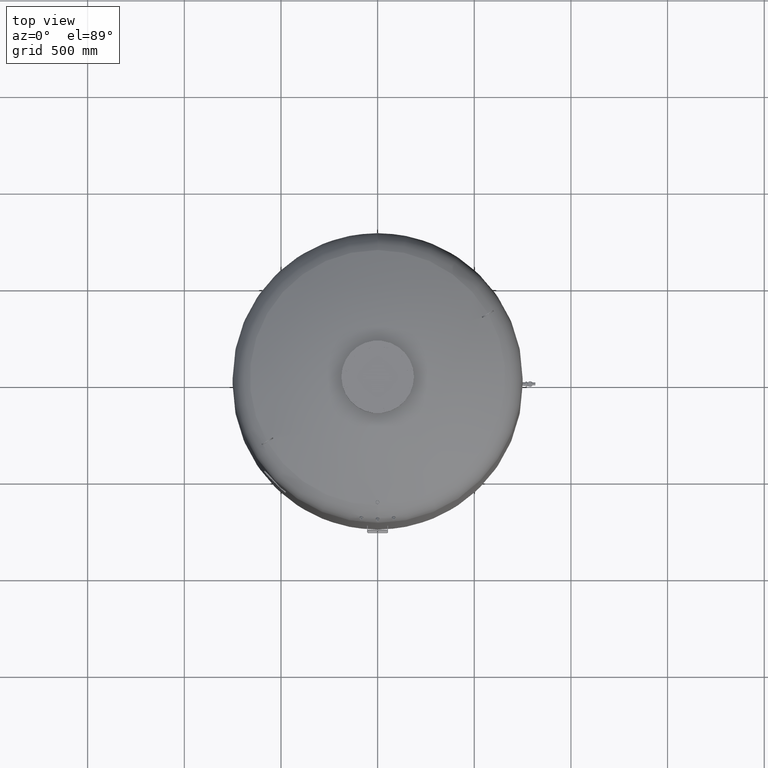
[diagram: clean part render]
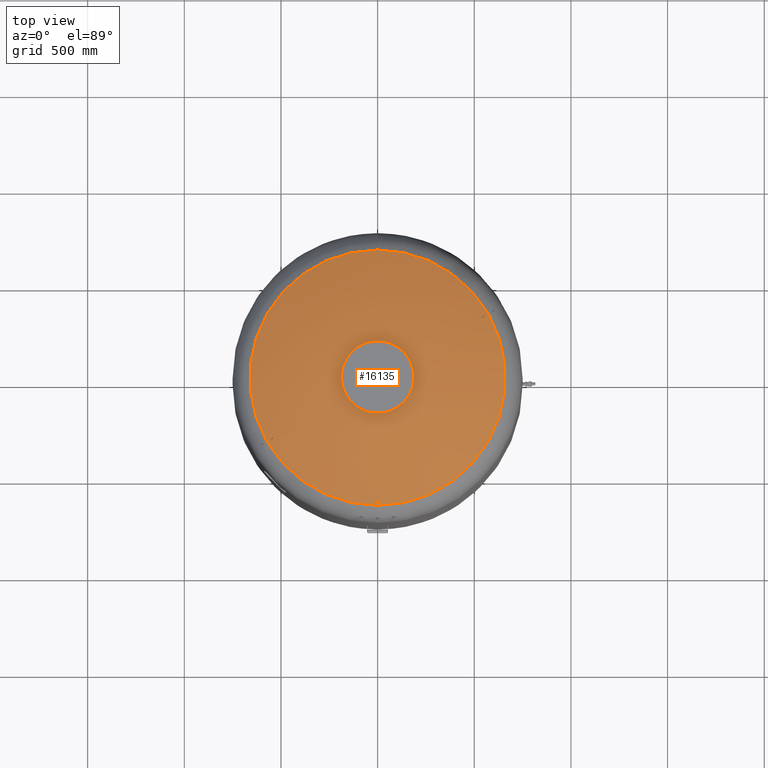
[diagram: same view with one face highlighted and labeled with its STEP entity id]
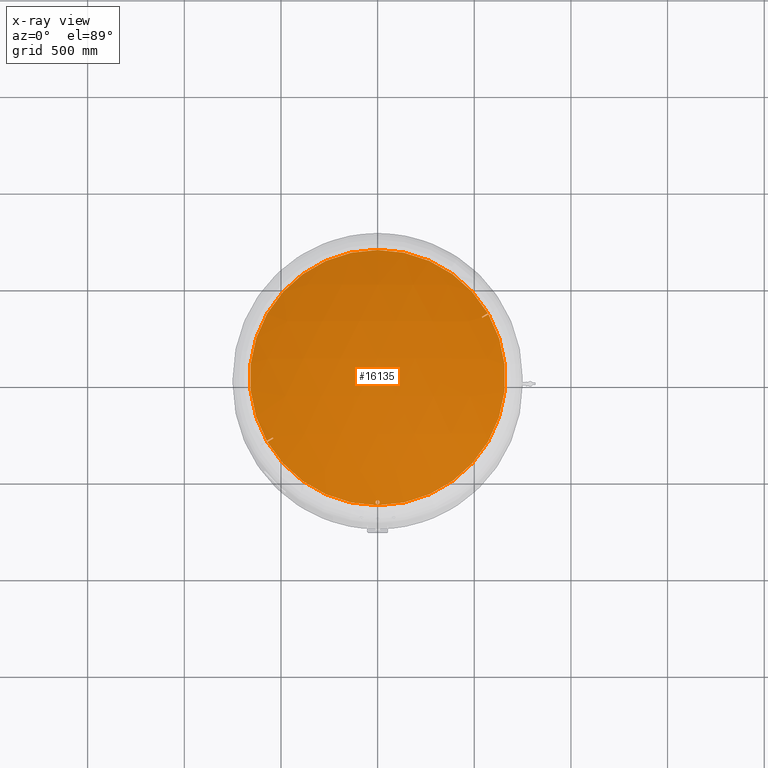
[diagram: x-ray of the same camera — body ghosted, the highlighted face saturated]
A machine part, top view. The second image highlights one B-rep face of the part: STEP entity #16135.
The next image is the same camera in x-ray: the body ghosted, the highlighted face saturated — about 0% of this face is hidden behind the body in this view.
In plain terms, the highlighted spherical surface has radius 1509 mm.
Its self-contained STEP definition (entity closure, byte-faithful):
#15353=CARTESIAN_POINT('',(-3.908790E-014,-655.650000000000200,2850.118860696149600));
#15354=VERTEX_POINT('',#15353);
#15370=CARTESIAN_POINT('',(-3.643333E-014,-634.350000000000250,2860.189934778955400));
#15371=VERTEX_POINT('',#15370);
#15378=CARTESIAN_POINT('',(-3.643333E-014,-634.350000000000250,2860.189934778955400));
#15379=CARTESIAN_POINT('',(-0.665356121600575,-634.350000000000250,2860.189934778955400));
#15380=CARTESIAN_POINT('',(-1.350949437001933,-634.413404190588380,2860.160067323583900));
#15381=CARTESIAN_POINT('',(-2.709163715388102,-634.677136677483300,2860.035819489551600));
#15382=CARTESIAN_POINT('',(-3.381800145527381,-634.877399673759780,2859.941469592940800));
#15383=CARTESIAN_POINT('',(-4.666205770247565,-635.401555709393960,2859.694482302683800));
#15384=CARTESIAN_POINT('',(-5.279175018932286,-635.725897994843310,2859.541632396409100));
#15385=CARTESIAN_POINT('',(-6.408446699131011,-636.467094997367890,2859.192258225785700));
#15386=CARTESIAN_POINT('',(-6.924750618118385,-636.883947430330180,2858.995733923613400));
#15387=CARTESIAN_POINT('',(-7.890225855511284,-637.812066143510150,2858.558066601965000));
#15388=CARTESIAN_POINT('',(-8.361484811050577,-638.364076526992330,2858.297699280517000));
#15389=CARTESIAN_POINT('',(-9.184909130526258,-639.560574217313960,2857.733154802825500));
#15390=CARTESIAN_POINT('',(-9.537165322407889,-640.205009979753980,2857.429000886638700));
#15391=CARTESIAN_POINT('',(-10.099596713855821,-641.543470358319950,2856.797056877939700));
#15392=CARTESIAN_POINT('',(-10.310158197774166,-642.238371078161440,2856.468852435417800));
#15393=CARTESIAN_POINT('',(-10.585389715432889,-643.630518005042970,2855.811092215924000));
#15394=CARTESIAN_POINT('',(-10.650000000000041,-644.327773783445990,2855.481531696811500));
#15395=CARTESIAN_POINT('',(-10.650000000000041,-645.672582847176270,2854.845682896962900));
#15396=CARTESIAN_POINT('',(-10.585321999158978,-646.370108996278650,2854.515766474685300));
#15397=CARTESIAN_POINT('',(-10.309904511360994,-647.762627273321750,2853.856887882093800));
#15398=CARTESIAN_POINT('',(-10.099226215268921,-648.457629366783070,2853.527921196685800));
#15399=CARTESIAN_POINT('',(-9.536575262430000,-649.796175836176870,2852.894126243168100));
#15400=CARTESIAN_POINT('',(-9.184218306884119,-650.440594312455000,2852.588884786357100));
#15401=CARTESIAN_POINT('',(-8.360621428439867,-651.637013011092450,2852.022009760502000));
#15402=CARTESIAN_POINT('',(-7.889290439644364,-652.188962456306400,2851.760401335867800));
#15403=CARTESIAN_POINT('',(-6.923874650766163,-653.116778685511690,2851.320541682071500));
#15404=CARTESIAN_POINT('',(-6.407722563082293,-653.533432843510810,2851.122965029964700));
#15405=CARTESIAN_POINT('',(-5.278739801402308,-654.274335051526010,2850.771567636845200));
#15406=CARTESIAN_POINT('',(-4.665906970622991,-654.598580857008300,2850.617749092760700));
#15407=CARTESIAN_POINT('',(-3.381714256279930,-655.122620744017920,2850.369122863290600));
#15408=CARTESIAN_POINT('',(-2.709152380359616,-655.322864024945490,2850.274102903182200));
#15409=CARTESIAN_POINT('',(-1.351005238531963,-655.586586472611200,2850.148956099280000));
#15410=CARTESIAN_POINT('',(-0.665404330812124,-655.650000000000200,2850.118860696149600));
#15411=CARTESIAN_POINT('',(-3.908790E-014,-655.650000000000200,2850.118860696149600));
#15412=B_SPLINE_CURVE_WITH_KNOTS('',3,(#15378,#15379,#15380,#15381,#15382,#15383,#15384,#15385,#15386,#15387,#15388,#15389,#15390,#15391,#15392,#15393,#15394,#15395,#15396,#15397,#15398,#15399,#15400,#15401,#15402,#15403,#15404,#15405,#15406,#15407,#15408,#15409,#15410,#15411),.UNSPECIFIED.,.F.,.U.,(4,2,2,2,2,2,2,2,2,2,2,2,2,2,2,2,4),(33.819766214062426,35.815834578864042,37.811902943665665,39.807971308467287,41.804039673268903,44.034778043807279,46.265516414345662,48.496254784884044,50.726993155422420,52.958914981161783,55.190836806901146,57.422758632640509,59.654680458379865,61.650893450816113,63.647106443252355,65.643319435688596,67.639532428124852),.UNSPECIFIED.);
#15413=EDGE_CURVE('',#15371,#15354,#15412,.T.);
#15634=CARTESIAN_POINT('',(1.087271E-013,660.606666666666800,2847.716562866229200));
#15635=VERTEX_POINT('',#15634);
#15643=CARTESIAN_POINT('',(570.596255916202270,332.898003566943030,2847.716562866229200));
#15644=VERTEX_POINT('',#15643);
#15645=CARTESIAN_POINT('',(7.530601E-015,-2.797401E-014,2847.716562866229200));
#15646=DIRECTION('',(0.0,0.0,-1.0));
#15647=DIRECTION('',(1.0,0.0,0.0));
#15648=AXIS2_PLACEMENT_3D('',#15645,#15646,#15647);
#15649=CIRCLE('',#15648,660.606666666666800);
#15650=EDGE_CURVE('',#15635,#15644,#15649,.T.);
#15679=CARTESIAN_POINT('',(573.596255916202270,327.701851144236400,2847.716562866229200));
#15680=VERTEX_POINT('',#15679);
#15694=CARTESIAN_POINT('',(2.782883E-014,-660.606666666666800,2847.716562866229200));
#15695=VERTEX_POINT('',#15694);
#15696=CARTESIAN_POINT('',(7.530601E-015,-2.797401E-014,2847.716562866229200));
#15697=DIRECTION('',(0.0,0.0,-1.0));
#15698=DIRECTION('',(1.0,0.0,0.0));
#15699=AXIS2_PLACEMENT_3D('',#15696,#15697,#15698);
#15700=CIRCLE('',#15699,660.606666666666800);
#15701=EDGE_CURVE('',#15680,#15695,#15700,.T.);
#15816=CARTESIAN_POINT('',(-570.596255916196580,-332.898003566952920,2847.716562866229700));
#15817=VERTEX_POINT('',#15816);
#15818=CARTESIAN_POINT('',(7.530601E-015,-2.797401E-014,2847.716562866229200));
#15819=DIRECTION('',(0.0,0.0,-1.0));
#15820=DIRECTION('',(1.0,0.0,0.0));
#15821=AXIS2_PLACEMENT_3D('',#15818,#15819,#15820);
#15822=CIRCLE('',#15821,660.606666666666800);
#15823=EDGE_CURVE('',#15695,#15817,#15822,.T.);
#15852=CARTESIAN_POINT('',(-573.596255916196580,-327.701851144246290,2847.716562866229700));
#15853=VERTEX_POINT('',#15852);
#15867=CARTESIAN_POINT('',(7.530601E-015,-2.797401E-014,2847.716562866229200));
#15868=DIRECTION('',(0.0,0.0,-1.0));
#15869=DIRECTION('',(1.0,0.0,0.0));
#15870=AXIS2_PLACEMENT_3D('',#15867,#15868,#15869);
#15871=CIRCLE('',#15870,660.606666666666800);
#15872=EDGE_CURVE('',#15853,#15635,#15871,.T.);
#16034=CARTESIAN_POINT('',(1.607048E-013,-2.771988E-013,1491.0));
#16035=DIRECTION('',(0.0,-1.0,0.0));
#16036=DIRECTION('',(-1.0,0.0,0.0));
#16037=AXIS2_PLACEMENT_3D('',#16034,#16035,#16036);
#16038=SPHERICAL_SURFACE('',#16037,1509.0);
#16039=CARTESIAN_POINT('',(-539.004547741172360,-314.658522347942950,2864.879584180558100));
#16040=VERTEX_POINT('',#16039);
#16041=CARTESIAN_POINT('',(1.500000000005994,-2.598076211363742,1491.0));
#16042=DIRECTION('',(0.499999999999994,-0.866025403784442,0.0));
#16043=DIRECTION('',(0.0,0.0,1.0));
#16044=AXIS2_PLACEMENT_3D('',#16041,#16042,#16043);
#16045=CIRCLE('',#16044,1508.997017889697400);
#16046=EDGE_CURVE('',#16040,#15817,#16045,.T.);
#16047=ORIENTED_EDGE('',*,*,#16046,.T.);
#16048=ORIENTED_EDGE('',*,*,#15823,.F.);
#16049=ORIENTED_EDGE('',*,*,#15701,.F.);
#16050=CARTESIAN_POINT('',(542.004547741178380,309.462369925225970,2864.879584180558100));
#16051=VERTEX_POINT('',#16050);
#16052=CARTESIAN_POINT('',(1.500000000006090,-2.598076211363818,1491.0));
#16053=DIRECTION('',(0.500000000000006,-0.866025403784435,0.0));
#16054=DIRECTION('',(0.0,0.0,1.0));
#16055=AXIS2_PLACEMENT_3D('',#16052,#16053,#16054);
#16056=CIRCLE('',#16055,1508.997017889697400);
#16057=EDGE_CURVE('',#15680,#16051,#16056,.T.);
#16058=ORIENTED_EDGE('',*,*,#16057,.T.);
#16059=CARTESIAN_POINT('',(539.004547741178380,314.658522347932720,2864.879584180558100));
#16060=VERTEX_POINT('',#16059);
#16061=CARTESIAN_POINT('',(195.850324208315390,113.074237402547780,1428.348481320245400));
#16062=DIRECTION('',(-0.834590199910595,-0.481850876581413,0.266981143436977));
#16063=DIRECTION('',(0.0,0.484652475916126,0.874706795211040));
#16064=AXIS2_PLACEMENT_3D('',#16061,#16062,#16063);
#16065=CIRCLE('',#16064,1490.641692208577100);
#16066=EDGE_CURVE('',#16051,#16060,#16065,.T.);
#16067=ORIENTED_EDGE('',*,*,#16066,.T.);
#16068=CARTESIAN_POINT('',(-1.499999999993948,2.598076211342792,1491.0));
#16069=DIRECTION('',(-0.500000000000006,0.866025403784435,0.0));
#16070=DIRECTION('',(0.0,0.0,-1.0));
#16071=AXIS2_PLACEMENT_3D('',#16068,#16069,#16070);
#16072=CIRCLE('',#16071,1508.997017889697400);
#16073=EDGE_CURVE('',#16060,#15644,#16072,.T.);
#16074=ORIENTED_EDGE('',*,*,#16073,.T.);
#16075=ORIENTED_EDGE('',*,*,#15650,.F.);
#16076=ORIENTED_EDGE('',*,*,#15872,.F.);
#16077=CARTESIAN_POINT('',(-542.004547741172470,-309.462369925236320,2864.879584180558100));
#16078=VERTEX_POINT('',#16077);
#16079=CARTESIAN_POINT('',(-1.499999999993967,2.598076211342912,1491.0));
#16080=DIRECTION('',(-0.499999999999994,0.866025403784442,0.0));
#16081=DIRECTION('',(0.0,0.0,-1.0));
#16082=AXIS2_PLACEMENT_3D('',#16079,#16080,#16081);
#16083=CIRCLE('',#16082,1508.997017889697400);
#16084=EDGE_CURVE('',#15853,#16078,#16083,.T.);
#16085=ORIENTED_EDGE('',*,*,#16084,.T.);
#16086=CARTESIAN_POINT('',(-195.850324208316520,-113.074237402545550,1428.348481320245600));
#16087=DIRECTION('',(0.834590199910602,0.481850876581402,0.266981143436977));
#16088=DIRECTION('',(0.0,0.484652475916135,-0.874706795211036));
#16089=AXIS2_PLACEMENT_3D('',#16086,#16087,#16088);
#16090=CIRCLE('',#16089,1490.641692208577100);
#16091=EDGE_CURVE('',#16078,#16040,#16090,.T.);
#16092=ORIENTED_EDGE('',*,*,#16091,.T.);
#16093=EDGE_LOOP('',(#16047,#16048,#16049,#16058,#16067,#16074,#16075,#16076,#16085,#16092));
#16094=FACE_OUTER_BOUND('',#16093,.T.);
#16095=CARTESIAN_POINT('',(-3.908790E-014,-655.650000000000200,2850.118860696149600));
#16096=CARTESIAN_POINT('',(0.665404330812043,-655.650000000000200,2850.118860696149600));
#16097=CARTESIAN_POINT('',(1.351005238531879,-655.586586472611200,2850.148956099280000));
#16098=CARTESIAN_POINT('',(2.709152380359531,-655.322864024945490,2850.274102903182200));
#16099=CARTESIAN_POINT('',(3.381714256279847,-655.122620744017920,2850.369122863290600));
#16100=CARTESIAN_POINT('',(4.665906970622912,-654.598580857008300,2850.617749092760700));
#16101=CARTESIAN_POINT('',(5.278739801402231,-654.274335051526010,2850.771567636845200));
#16102=CARTESIAN_POINT('',(6.407722563082215,-653.533432843510810,2851.122965029964700));
#16103=CARTESIAN_POINT('',(6.923874650766086,-653.116778685511690,2851.320541682071500));
#16104=CARTESIAN_POINT('',(7.889290439644289,-652.188962456306400,2851.760401335867800));
#16105=CARTESIAN_POINT('',(8.360621428439895,-651.637013011092340,2852.022009760502000));
#16106=CARTESIAN_POINT('',(9.184218306884104,-650.440594312454890,2852.588884786357100));
#16107=CARTESIAN_POINT('',(9.536575262430048,-649.796175836176760,2852.894126243168100));
#16108=CARTESIAN_POINT('',(10.099226215268947,-648.457629366782840,2853.527921196685800));
#16109=CARTESIAN_POINT('',(10.309904511360925,-647.762627273321640,2853.856887882094300));
#16110=CARTESIAN_POINT('',(10.585321999158889,-646.370108996278760,2854.515766474685700));
#16111=CARTESIAN_POINT('',(10.649999999999967,-645.672582847176270,2854.845682896962900));
#16112=CARTESIAN_POINT('',(10.649999999999967,-644.327773783445990,2855.481531696811500));
#16113=CARTESIAN_POINT('',(10.585389715432814,-643.630518005042970,2855.811092215924000));
#16114=CARTESIAN_POINT('',(10.310158197774092,-642.238371078161440,2856.468852435417800));
#16115=CARTESIAN_POINT('',(10.099596713855746,-641.543470358319950,2856.797056877939700));
#16116=CARTESIAN_POINT('',(9.537165322407816,-640.205009979753980,2857.429000886638700));
#16117=CARTESIAN_POINT('',(9.184909130526183,-639.560574217313960,2857.733154802825500));
#16118=CARTESIAN_POINT('',(8.361484811050502,-638.364076526992330,2858.297699280517000));
#16119=CARTESIAN_POINT('',(7.890225855511214,-637.812066143510150,2858.558066601965000));
#16120=CARTESIAN_POINT('',(6.924750618118313,-636.883947430330180,2858.995733923613400));
#16121=CARTESIAN_POINT('',(6.408446699130936,-636.467094997367890,2859.192258225785700));
#16122=CARTESIAN_POINT('',(5.279175018932212,-635.725897994843310,2859.541632396409100));
#16123=CARTESIAN_POINT('',(4.666205770247492,-635.401555709393960,2859.694482302683800));
#16124=CARTESIAN_POINT('',(3.381800145527312,-634.877399673759780,2859.941469592940800));
#16125=CARTESIAN_POINT('',(2.709163715388034,-634.677136677483300,2860.035819489551600));
#16126=CARTESIAN_POINT('',(1.350949437001865,-634.413404190588380,2860.160067323583900));
#16127=CARTESIAN_POINT('',(0.665356121600503,-634.350000000000250,2860.189934778955400));
#16128=CARTESIAN_POINT('',(-3.643333E-014,-634.350000000000250,2860.189934778955400));
#16129=B_SPLINE_CURVE_WITH_KNOTS('',3,(#16095,#16096,#16097,#16098,#16099,#16100,#16101,#16102,#16103,#16104,#16105,#16106,#16107,#16108,#16109,#16110,#16111,#16112,#16113,#16114,#16115,#16116,#16117,#16118,#16119,#16120,#16121,#16122,#16123,#16124,#16125,#16126,#16127,#16128),.UNSPECIFIED.,.F.,.U.,(4,2,2,2,2,2,2,2,2,2,2,2,2,2,2,2,4),(0.0,1.996212992436247,3.992425984872494,5.988638977308741,7.984851969744987,10.216773795484348,12.448695621223710,14.680617446963071,16.912539272702432,19.143277643240811,21.374016013779190,23.604754384317570,25.835492754855949,27.831561119657568,29.827629484459187,31.823697849260807,33.819766214062426),.UNSPECIFIED.);
#16130=EDGE_CURVE('',#15354,#15371,#16129,.T.);
#16131=ORIENTED_EDGE('',*,*,#16130,.F.);
#16132=ORIENTED_EDGE('',*,*,#15413,.F.);
#16133=EDGE_LOOP('',(#16131,#16132));
#16134=FACE_BOUND('',#16133,.T.);
#16135=ADVANCED_FACE('',(#16094,#16134),#16038,.T.);